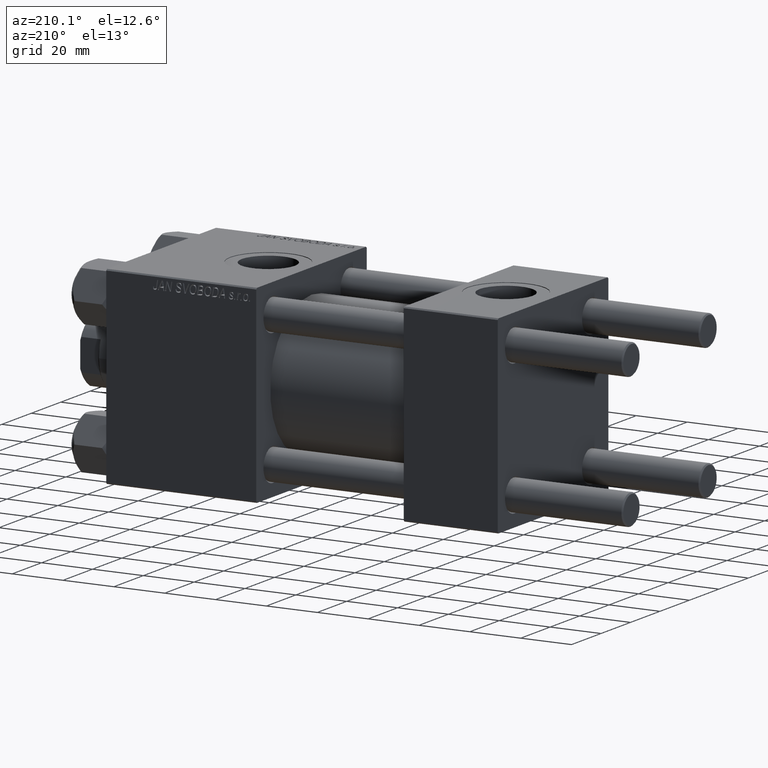
[diagram: clean part render]
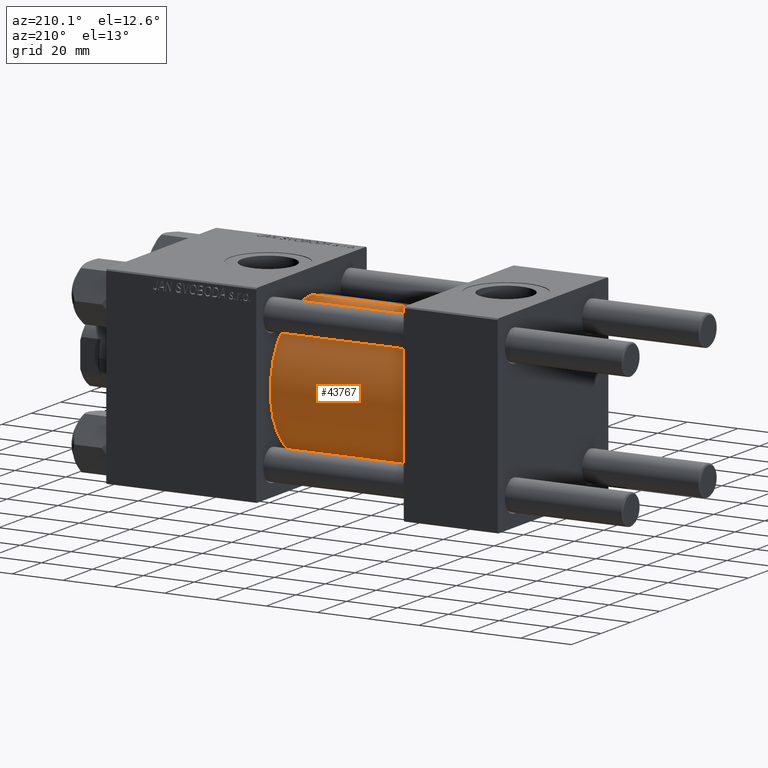
[diagram: same view with one face highlighted and labeled with its STEP entity id]
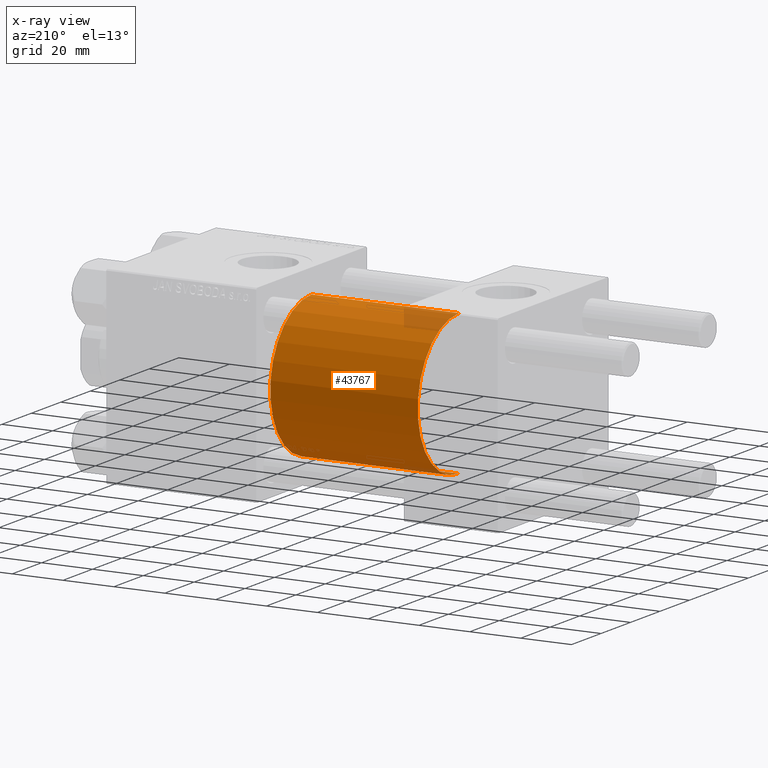
[diagram: x-ray of the same camera — body ghosted, the highlighted face saturated]
A machine part, auxiliary view. The second image highlights one B-rep face of the part: STEP entity #43767.
The next image is the same camera in x-ray: the body ghosted, the highlighted face saturated — about 5% of this face is hidden behind the body in this view.
In plain terms, the highlighted cylindrical surface (partial cylindrical patch) has radius 28 mm, axis along (-1, -0, -0).
Its self-contained STEP definition (entity closure, byte-faithful):
#1745 = CARTESIAN_POINT ( 'NONE',  ( 95.00000000000000000, 0.000000000000000000, 0.000000000000000000 ) ) ;
#3057 = CARTESIAN_POINT ( 'NONE',  ( 95.00000000000000000, 0.000000000000000000, 0.000000000000000000 ) ) ;
#3355 = LINE ( 'NONE', #14726, #13673 ) ;
#3464 = ORIENTED_EDGE ( 'NONE', *, *, #38046, .F. ) ;
#4796 = LINE ( 'NONE', #19020, #29854 ) ;
#9537 = DIRECTION ( 'NONE',  ( 0.000000000000000000, 0.000000000000000000, 1.000000000000000000 ) ) ;
#10483 = ORIENTED_EDGE ( 'NONE', *, *, #31315, .T. ) ;
#13673 = VECTOR ( 'NONE', #38178, 1000.000000000000000 ) ;
#14726 = CARTESIAN_POINT ( 'NONE',  ( 95.00000000000000000, 3.429011037612588487E-15, -28.00000000000000000 ) ) ;
#18461 = DIRECTION ( 'NONE',  ( 1.000000000000000000, 0.000000000000000000, 0.000000000000000000 ) ) ;
#19020 = CARTESIAN_POINT ( 'NONE',  ( 95.00000000000000000, 0.000000000000000000, 28.00000000000000000 ) ) ;
#20444 = FACE_OUTER_BOUND ( 'NONE', #35209, .T. ) ;
#21949 = CARTESIAN_POINT ( 'NONE',  ( 95.00000000000000000, 0.000000000000000000, 28.00000000000000000 ) ) ;
#24473 = DIRECTION ( 'NONE',  ( 0.000000000000000000, 0.000000000000000000, 1.000000000000000000 ) ) ;
#25236 = CIRCLE ( 'NONE', #47817, 28.00000000000000000 ) ;
#27162 = VERTEX_POINT ( 'NONE', #21949 ) ;
#28470 = EDGE_CURVE ( 'NONE', #41762, #41287, #41761, .T. ) ;
#29436 = CARTESIAN_POINT ( 'NONE',  ( 37.00000000000000000, 0.000000000000000000, 0.000000000000000000 ) ) ;
#29854 = VECTOR ( 'NONE', #38445, 1000.000000000000000 ) ;
#31315 = EDGE_CURVE ( 'NONE', #45052, #41762, #3355, .T. ) ;
#33212 = DIRECTION ( 'NONE',  ( 1.000000000000000000, -0.000000000000000000, 0.000000000000000000 ) ) ;
#33839 = DIRECTION ( 'NONE',  ( 0.000000000000000000, 0.000000000000000000, -1.000000000000000000 ) ) ;
#35209 = EDGE_LOOP ( 'NONE', ( #40981, #10483, #48625, #3464 ) ) ;
#38046 = EDGE_CURVE ( 'NONE', #27162, #41287, #4796, .T. ) ;
#38178 = DIRECTION ( 'NONE',  ( -1.000000000000000000, -0.000000000000000000, -0.000000000000000000 ) ) ;
#38445 = DIRECTION ( 'NONE',  ( -1.000000000000000000, -0.000000000000000000, -0.000000000000000000 ) ) ;
#40981 = ORIENTED_EDGE ( 'NONE', *, *, #44717, .F. ) ;
#41287 = VERTEX_POINT ( 'NONE', #48524 ) ;
#41762 = VERTEX_POINT ( 'NONE', #46683 ) ;
#41761 = CIRCLE ( 'NONE', #48184, 28.00000000000000000 ) ;
#43130 = CARTESIAN_POINT ( 'NONE',  ( 95.00000000000000000, 3.429011037612588487E-15, -28.00000000000000000 ) ) ;
#43767 = ADVANCED_FACE ( 'NONE', ( #20444 ), #48421, .T. ) ;
#44403 = DIRECTION ( 'NONE',  ( -1.000000000000000000, -0.000000000000000000, -0.000000000000000000 ) ) ;
#44717 = EDGE_CURVE ( 'NONE', #45052, #27162, #25236, .T. ) ;
#45052 = VERTEX_POINT ( 'NONE', #43130 ) ;
#46683 = CARTESIAN_POINT ( 'NONE',  ( 37.00000000000000000, 3.429011037612588487E-15, -28.00000000000000000 ) ) ;
#47778 = AXIS2_PLACEMENT_3D ( 'NONE', #1745, #44403, #24473 ) ;
#47817 = AXIS2_PLACEMENT_3D ( 'NONE', #3057, #18461, #33839 ) ;
#48184 = AXIS2_PLACEMENT_3D ( 'NONE', #29436, #33212, #9537 ) ;
#48421 = CYLINDRICAL_SURFACE ( 'NONE', #47778, 28.00000000000000000 ) ;
#48524 = CARTESIAN_POINT ( 'NONE',  ( 37.00000000000000000, 0.000000000000000000, 28.00000000000000000 ) ) ;
#48625 = ORIENTED_EDGE ( 'NONE', *, *, #28470, .T. ) ;